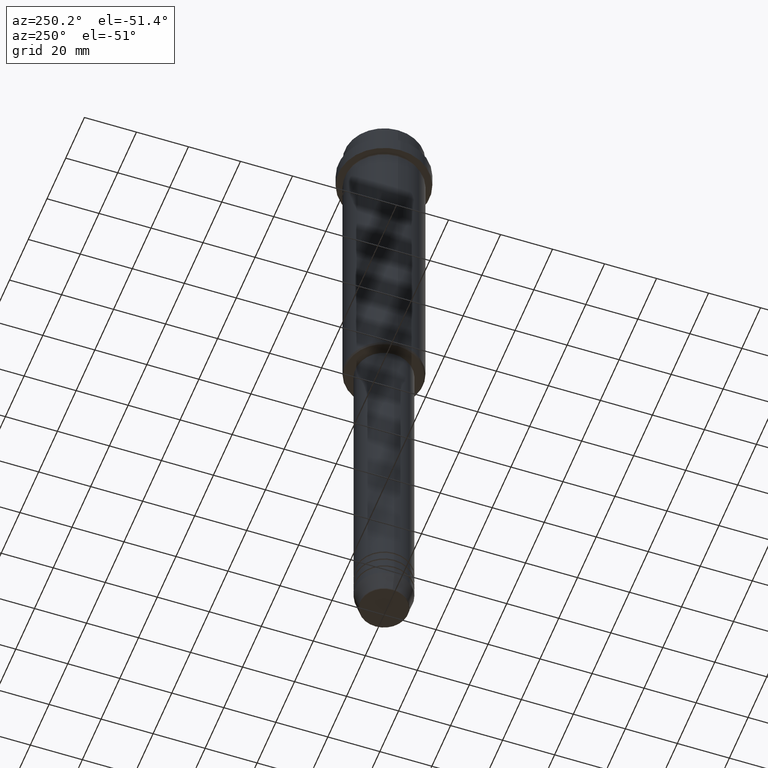
[diagram: clean part render]
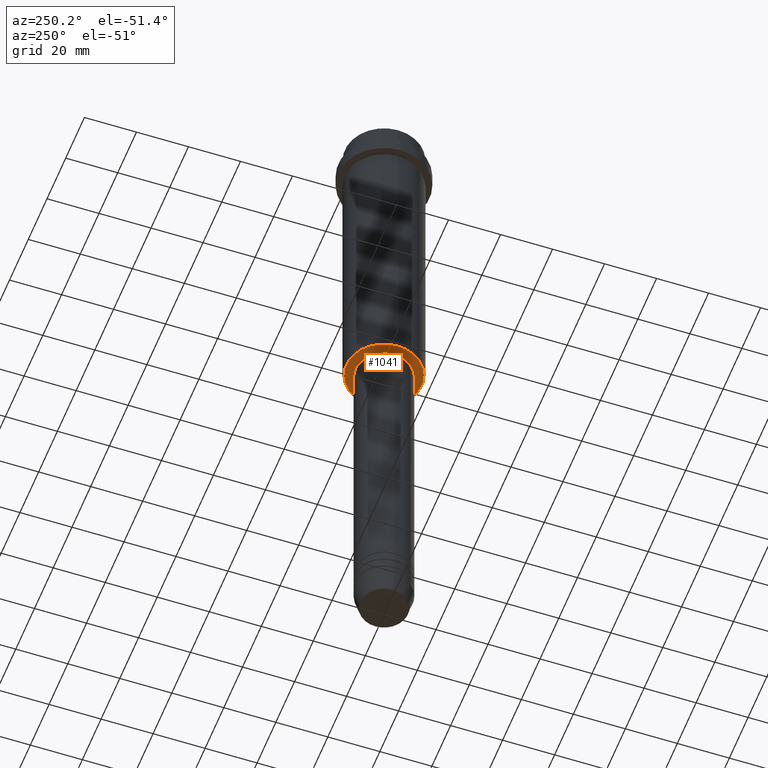
[diagram: same view with one face highlighted and labeled with its STEP entity id]
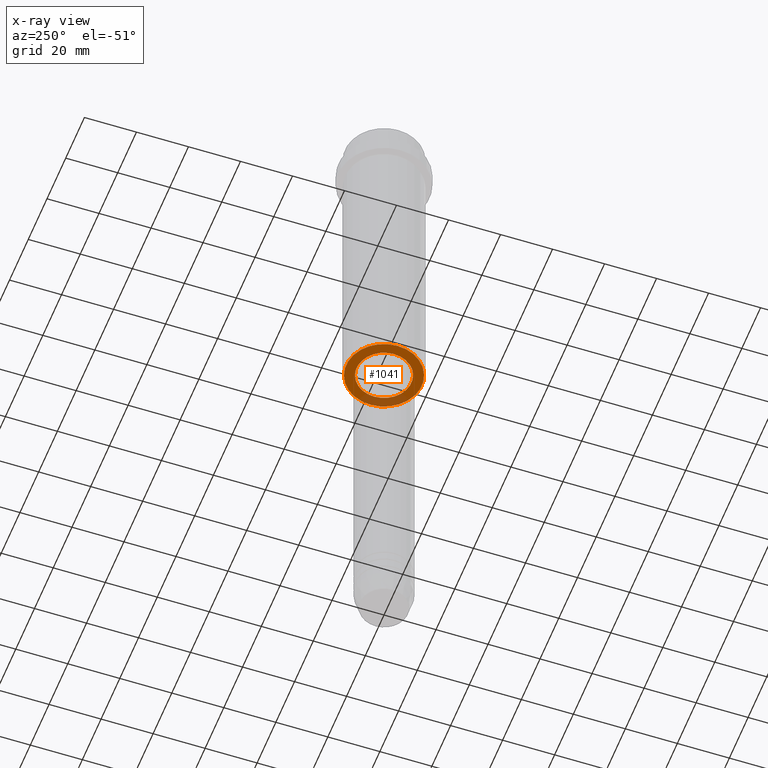
[diagram: x-ray of the same camera — body ghosted, the highlighted face saturated]
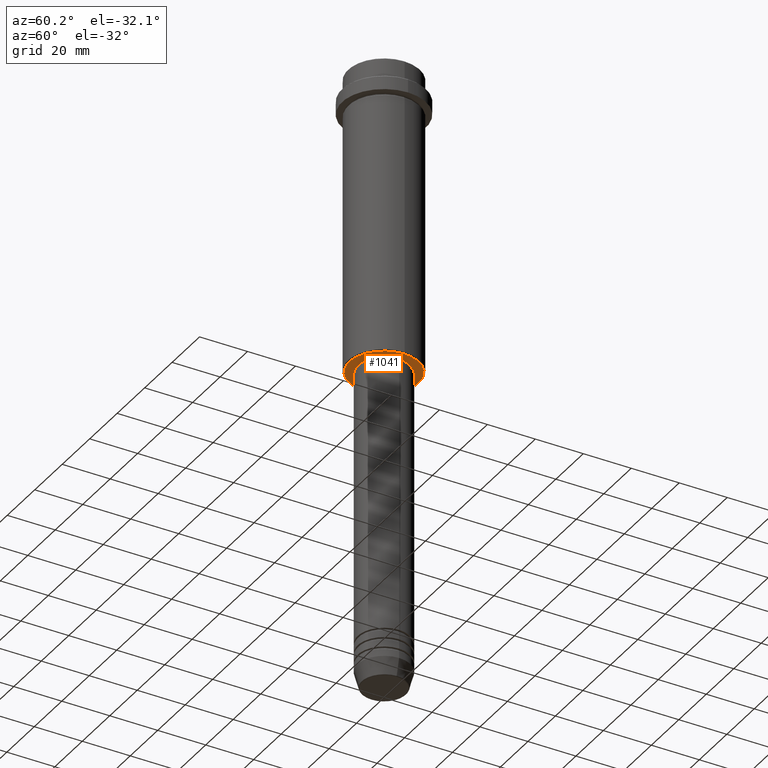
[diagram: same view with one face highlighted and labeled with its STEP entity id]
A machine part, auxiliary view. The second image highlights one B-rep face of the part: STEP entity #1041.
The next image is the same camera in x-ray: the body ghosted, the highlighted face saturated — about 21% of this face is hidden behind the body in this view.
A second angle (auxiliary view) of the same face is appended — the face is thin or edge-on in the first view.
In plain terms, the highlighted planar face has unit normal (0, 0, -1).
Its self-contained STEP definition (entity closure, byte-faithful):
#115 = CIRCLE ( 'NONE', #176, 10.49999999999999289 ) ;
#152 = DIRECTION ( 'NONE',  ( 1.000000000000000000, 0.000000000000000000, 0.000000000000000000 ) ) ;
#153 = DIRECTION ( 'NONE',  ( -0.000000000000000000, -0.000000000000000000, 1.000000000000000000 ) ) ;
#165 = DIRECTION ( 'NONE',  ( -0.000000000000000000, -0.000000000000000000, 1.000000000000000000 ) ) ;
#169 = ORIENTED_EDGE ( 'NONE', *, *, #299, .T. ) ;
#176 = AXIS2_PLACEMENT_3D ( 'NONE', #947, #153, #724 ) ;
#187 = EDGE_LOOP ( 'NONE', ( #389, #169 ) ) ;
#228 = DIRECTION ( 'NONE',  ( -1.000000000000000000, 0.000000000000000000, 0.000000000000000000 ) ) ;
#230 = CIRCLE ( 'NONE', #521, 14.49999999999995559 ) ;
#299 = EDGE_CURVE ( 'NONE', #957, #979, #230, .T. ) ;
#344 = CIRCLE ( 'NONE', #1170, 14.49999999999995559 ) ;
#346 = CIRCLE ( 'NONE', #995, 10.49999999999999289 ) ;
#357 = CARTESIAN_POINT ( 'NONE',  ( 14.49999999999995559, 0.000000000000000000, -125.0000000000000000 ) ) ;
#389 = ORIENTED_EDGE ( 'NONE', *, *, #815, .T. ) ;
#396 = EDGE_LOOP ( 'NONE', ( #1225, #547 ) ) ;
#473 = FACE_OUTER_BOUND ( 'NONE', #187, .T. ) ;
#521 = AXIS2_PLACEMENT_3D ( 'NONE', #633, #1179, #974 ) ;
#547 = ORIENTED_EDGE ( 'NONE', *, *, #564, .T. ) ;
#564 = EDGE_CURVE ( 'NONE', #698, #900, #115, .T. ) ;
#633 = CARTESIAN_POINT ( 'NONE',  ( 0.000000000000000000, 0.000000000000000000, -125.0000000000000000 ) ) ;
#698 = VERTEX_POINT ( 'NONE', #972 ) ;
#703 = DIRECTION ( 'NONE',  ( -1.000000000000000000, 0.000000000000000000, -0.000000000000000000 ) ) ;
#715 = DIRECTION ( 'NONE',  ( 0.000000000000000000, 0.000000000000000000, -1.000000000000000000 ) ) ;
#724 = DIRECTION ( 'NONE',  ( 1.000000000000000000, 0.000000000000000000, 0.000000000000000000 ) ) ;
#815 = EDGE_CURVE ( 'NONE', #979, #957, #344, .T. ) ;
#900 = VERTEX_POINT ( 'NONE', #901 ) ;
#901 = CARTESIAN_POINT ( 'NONE',  ( 10.49999999999999289, 0.000000000000000000, -125.0000000000000000 ) ) ;
#935 = CARTESIAN_POINT ( 'NONE',  ( 0.000000000000000000, 0.000000000000000000, -125.0000000000000000 ) ) ;
#947 = CARTESIAN_POINT ( 'NONE',  ( 0.000000000000000000, 0.000000000000000000, -125.0000000000000000 ) ) ;
#957 = VERTEX_POINT ( 'NONE', #1158 ) ;
#972 = CARTESIAN_POINT ( 'NONE',  ( -10.49999999999999289, 1.285879139104720042E-15, -125.0000000000000000 ) ) ;
#974 = DIRECTION ( 'NONE',  ( -1.000000000000000000, 0.000000000000000000, 0.000000000000000000 ) ) ;
#976 = EDGE_CURVE ( 'NONE', #900, #698, #346, .T. ) ;
#979 = VERTEX_POINT ( 'NONE', #357 ) ;
#995 = AXIS2_PLACEMENT_3D ( 'NONE', #935, #165, #152 ) ;
#1041 = ADVANCED_FACE ( 'NONE', ( #473, #1359 ), #1251, .T. ) ;
#1111 = DIRECTION ( 'NONE',  ( 0.000000000000000000, 0.000000000000000000, -1.000000000000000000 ) ) ;
#1158 = CARTESIAN_POINT ( 'NONE',  ( -14.49999999999995559, 1.806354028742343041E-15, -125.0000000000000000 ) ) ;
#1170 = AXIS2_PLACEMENT_3D ( 'NONE', #1348, #1111, #228 ) ;
#1179 = DIRECTION ( 'NONE',  ( 0.000000000000000000, 0.000000000000000000, -1.000000000000000000 ) ) ;
#1225 = ORIENTED_EDGE ( 'NONE', *, *, #976, .T. ) ;
#1251 = PLANE ( 'NONE',  #1355 ) ;
#1348 = CARTESIAN_POINT ( 'NONE',  ( 0.000000000000000000, 0.000000000000000000, -125.0000000000000000 ) ) ;
#1355 = AXIS2_PLACEMENT_3D ( 'NONE', #1364, #715, #703 ) ;
#1359 = FACE_BOUND ( 'NONE', #396, .T. ) ;
#1364 = CARTESIAN_POINT ( 'NONE',  ( 0.000000000000000000, 15.00000000000000000, -125.0000000000000000 ) ) ;